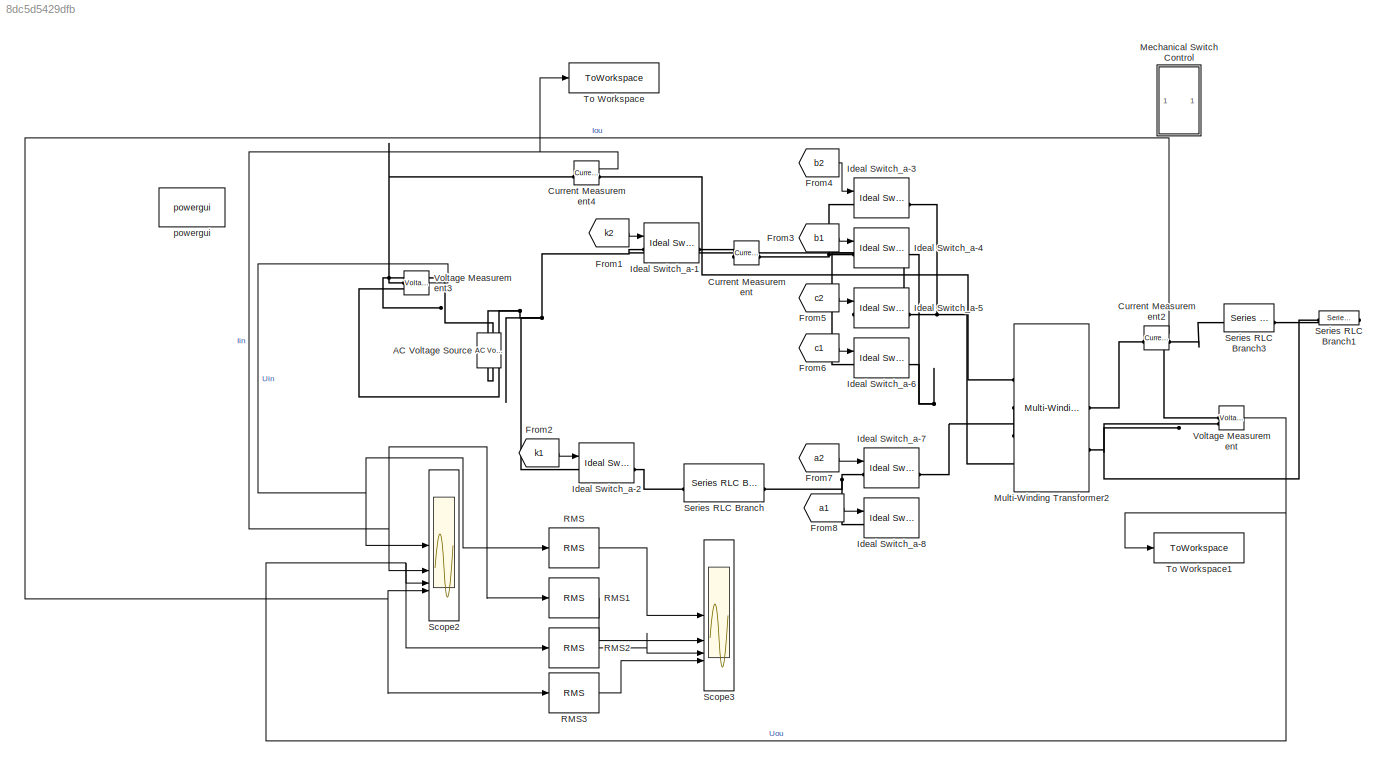
MODEL slx_8dc5d5429dfb
KIND model
CONFIG AbsTol = auto
CONFIG EnableMultiTasking = on
CONFIG FixedStep = auto
CONFIG MaxStep = auto
CONFIG MinStep = auto
CONFIG RelTol = 1e-3
CONFIG SampleTimeConstraint = Unconstrained
CONFIG SolverName = ode45
CONFIG StartTime = 0.0
CONFIG StopTime = 10
BLOCK [Reference] AC Voltage Source  REF=spsACVoltageSourceLib/AC Voltage Source
  LibrarySourceBlock = sps_lib/Sources/AC Voltage Source
  NameLocation = left
  SourceBlock = spsACVoltageSourceLib/AC Voltage Source
  SourceType = AC Voltage Source
BLOCK [Reference] Current Measurement  REF=spsCurrentMeasurementLib/Current Measurement
  LibrarySourceBlock = sps_lib/Sensors and Measurements/Current Measurement
  SourceBlock = spsCurrentMeasurementLib/Current Measurement
  SourceType = Current Measurement
  UserDataPersistent = on
BLOCK [Reference] Current Measurement2  REF=spsCurrentMeasurementLib/Current Measurement
  LibrarySourceBlock = sps_lib/Sensors and Measurements/Current Measurement
  SourceBlock = spsCurrentMeasurementLib/Current Measurement
  SourceType = Current Measurement
  UserDataPersistent = on
BLOCK [Reference] Current Measurement4  REF=spsCurrentMeasurementLib/Current Measurement
  LibrarySourceBlock = sps_lib/Sensors and Measurements/Current Measurement
  SourceBlock = spsCurrentMeasurementLib/Current Measurement
  SourceType = Current Measurement
  UserDataPersistent = on
BLOCK [From] From1
  GotoTag = k2
  TagVisibility = global
BLOCK [From] From2
  GotoTag = k1
  TagVisibility = global
BLOCK [From] From3
  GotoTag = b1
  TagVisibility = global
BLOCK [From] From4
  GotoTag = b2
  TagVisibility = global
BLOCK [From] From5
  GotoTag = c2
  TagVisibility = global
BLOCK [From] From6
  GotoTag = c1
  TagVisibility = global
BLOCK [From] From7
  GotoTag = a2
  TagVisibility = global
BLOCK [From] From8
  GotoTag = a1
  TagVisibility = global
BLOCK [Reference] Ideal Switch_a-1  REF=spsIdealSwitchLib/Ideal Switch
  LibrarySourceBlock = sps_lib/Power Electronics/Ideal Switch
  SourceBlock = spsIdealSwitchLib/Ideal Switch
  SourceType = Ideal Switch
BLOCK [Reference] Ideal Switch_a-2  REF=spsIdealSwitchLib/Ideal Switch
  LibrarySourceBlock = sps_lib/Power Electronics/Ideal Switch
  SourceBlock = spsIdealSwitchLib/Ideal Switch
  SourceType = Ideal Switch
BLOCK [Reference] Ideal Switch_a-3  REF=spsIdealSwitchLib/Ideal Switch
  LibrarySourceBlock = sps_lib/Power Electronics/Ideal Switch
  SourceBlock = spsIdealSwitchLib/Ideal Switch
  SourceType = Ideal Switch
BLOCK [Reference] Ideal Switch_a-4  REF=spsIdealSwitchLib/Ideal Switch
  LibrarySourceBlock = sps_lib/Power Electronics/Ideal Switch
  SourceBlock = spsIdealSwitchLib/Ideal Switch
  SourceType = Ideal Switch
BLOCK [Reference] Ideal Switch_a-5  REF=spsIdealSwitchLib/Ideal Switch
  LibrarySourceBlock = sps_lib/Power Electronics/Ideal Switch
  SourceBlock = spsIdealSwitchLib/Ideal Switch
  SourceType = Ideal Switch
BLOCK [Reference] Ideal Switch_a-6  REF=spsIdealSwitchLib/Ideal Switch
  LibrarySourceBlock = sps_lib/Power Electronics/Ideal Switch
  SourceBlock = spsIdealSwitchLib/Ideal Switch
  SourceType = Ideal Switch
BLOCK [Reference] Ideal Switch_a-7  REF=spsIdealSwitchLib/Ideal Switch
  LibrarySourceBlock = sps_lib/Power Electronics/Ideal Switch
  SourceBlock = spsIdealSwitchLib/Ideal Switch
  SourceType = Ideal Switch
BLOCK [Reference] Ideal Switch_a-8  REF=spsIdealSwitchLib/Ideal Switch
  LibrarySourceBlock = sps_lib/Power Electronics/Ideal Switch
  SourceBlock = spsIdealSwitchLib/Ideal Switch
  SourceType = Ideal Switch
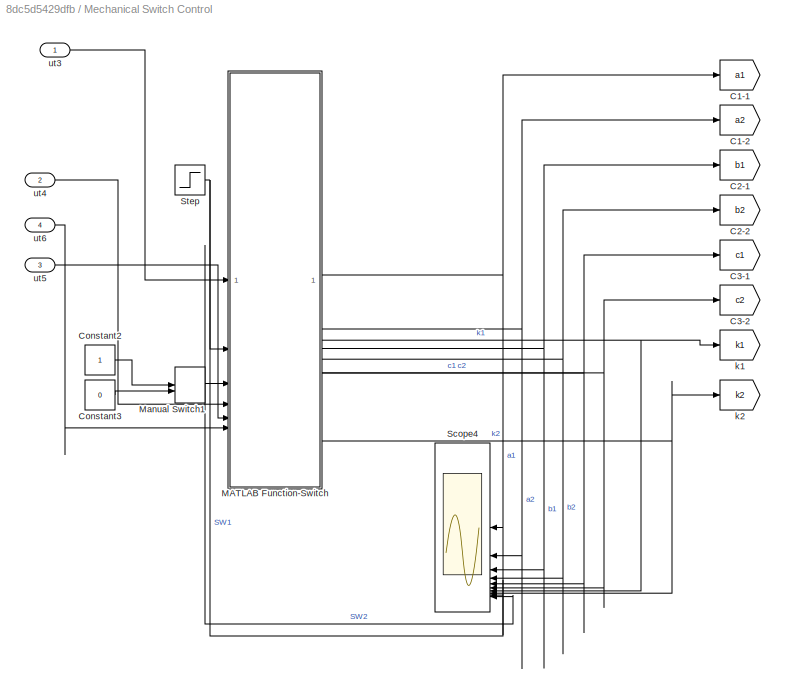
BLOCK [SubSystem] Mechanical Switch Control
BLOCK [Goto] Mechanical Switch Control/C1-1
  GotoTag = a1
  TagVisibility = global
BLOCK [Goto] Mechanical Switch Control/C1-2
  GotoTag = a2
  TagVisibility = global
BLOCK [Goto] Mechanical Switch Control/C2-1
  GotoTag = b1
  TagVisibility = global
BLOCK [Goto] Mechanical Switch Control/C2-2
  GotoTag = b2
  TagVisibility = global
BLOCK [Goto] Mechanical Switch Control/C3-1
  GotoTag = c1
  TagVisibility = global
BLOCK [Goto] Mechanical Switch Control/C3-2
  GotoTag = c2
  TagVisibility = global
BLOCK [Constant] Mechanical Switch Control/Constant2
BLOCK [Constant] Mechanical Switch Control/Constant3
  Value = 0
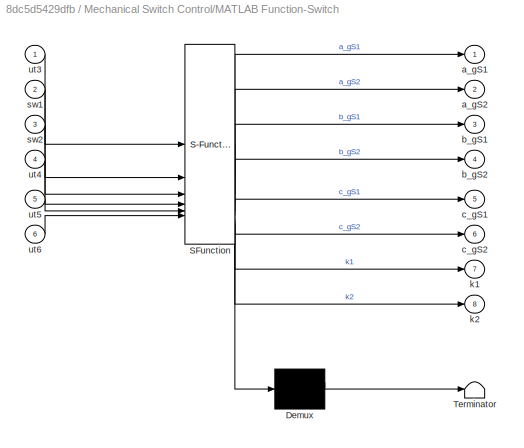
BLOCK [SubSystem] Mechanical Switch Control/MATLAB Function-Switch
  ErrorFcn = Stateflow.Translate.translate
  PermitHierarchicalResolution = ExplicitOnly
  SFBlockType = MATLAB Function
  TreatAsAtomicUnit = on
BLOCK [Demux] Mechanical Switch Control/MATLAB Function-Switch/ Demux 
  Outputs = 1
BLOCK [S-Function] Mechanical Switch Control/MATLAB Function-Switch/ SFunction 
  EnableBusSupport = on
  FunctionName = sf_sfun
  PortCounts = [6 9]
  SFcnIsStateOwnerBlock = off
  SFunctionDeploymentMode = off
  Tag = Stateflow S-Function 2
BLOCK [Terminator] Mechanical Switch Control/MATLAB Function-Switch/ Terminator 
BLOCK [Outport] Mechanical Switch Control/MATLAB Function-Switch/a_gS1
BLOCK [Outport] Mechanical Switch Control/MATLAB Function-Switch/a_gS2
  Port = 2
BLOCK [Outport] Mechanical Switch Control/MATLAB Function-Switch/b_gS1
  Port = 3
BLOCK [Outport] Mechanical Switch Control/MATLAB Function-Switch/b_gS2
  Port = 4
BLOCK [Outport] Mechanical Switch Control/MATLAB Function-Switch/c_gS1
  Port = 5
BLOCK [Outport] Mechanical Switch Control/MATLAB Function-Switch/c_gS2
  Port = 6
BLOCK [Outport] Mechanical Switch Control/MATLAB Function-Switch/k1
  Port = 7
BLOCK [Outport] Mechanical Switch Control/MATLAB Function-Switch/k2
  Port = 8
BLOCK [Inport] Mechanical Switch Control/MATLAB Function-Switch/sw1
  Port = 2
BLOCK [Inport] Mechanical Switch Control/MATLAB Function-Switch/sw2
  Port = 3
BLOCK [Inport] Mechanical Switch Control/MATLAB Function-Switch/ut3
BLOCK [Inport] Mechanical Switch Control/MATLAB Function-Switch/ut4
  Port = 4
BLOCK [Inport] Mechanical Switch Control/MATLAB Function-Switch/ut5
  Port = 5
BLOCK [Inport] Mechanical Switch Control/MATLAB Function-Switch/ut6
  Port = 6
BLOCK [ManualSwitch] Mechanical Switch Control/Manual Switch1
BLOCK [Scope] Mechanical Switch Control/Scope4
  Floating = off
  NameLocation = top
  NumInputPorts = 10
  ScopeSpecificationString = Simulink.scopes.TimeScopeBlockCfg('CurrentConfiguration', extmgr.ConfigurationSet(extmgr.Configuration('Core','General UI',true,'FigureColor',[0 0 0]),extmgr.Configuration('Core','Source UI',true),extmgr.Configuration('Sources','WiredSimulink',true,'DataLoggingSaveFormat','Structure','DataLoggingDecimation','1','DataLoggingDecimateData',true),extmgr.Configuration('Visuals','Time Domain',true,'Seri...<+13883ch>
BLOCK [Step] Mechanical Switch Control/Step
  SampleTime = 0
  Time = 5
BLOCK [Goto] Mechanical Switch Control/k1
  GotoTag = k1
  TagVisibility = global
BLOCK [Goto] Mechanical Switch Control/k2
  GotoTag = k2
  TagVisibility = global
BLOCK [Inport] Mechanical Switch Control/ut3
BLOCK [Inport] Mechanical Switch Control/ut4
  Port = 2
BLOCK [Inport] Mechanical Switch Control/ut5
  Port = 3
BLOCK [Inport] Mechanical Switch Control/ut6
  Port = 4
BLOCK [Reference] Multi-Winding Transformer2  REF=spsMultiWindingTransformerLib/Multi-Winding
Transformer
  LibrarySourceBlock = sps_lib/Power Grid Elements/Multi-Winding\nTransformer
  SourceBlock = spsMultiWindingTransformerLib/Multi-Winding\nTransformer
  SourceType = Multi-Winding Transformer
BLOCK [Reference] RMS  REF=spsRMSLib/RMS
  LibrarySourceBlock = sps_lib/Sensors and Measurements/RMS
  SourceBlock = spsRMSLib/RMS
  SourceType = RMS
BLOCK [Reference] RMS1  REF=spsRMSLib/RMS
  LibrarySourceBlock = sps_lib/Sensors and Measurements/RMS
  SourceBlock = spsRMSLib/RMS
  SourceType = RMS
BLOCK [Reference] RMS2  REF=spsRMSLib/RMS
  LibrarySourceBlock = sps_lib/Sensors and Measurements/RMS
  SourceBlock = spsRMSLib/RMS
  SourceType = RMS
BLOCK [Reference] RMS3  REF=spsRMSLib/RMS
  LibrarySourceBlock = sps_lib/Sensors and Measurements/RMS
  SourceBlock = spsRMSLib/RMS
  SourceType = RMS
BLOCK [Scope] Scope2
  Floating = off
  NumInputPorts = 4
  ScopeSpecificationString = Simulink.scopes.TimeScopeBlockCfg('CurrentConfiguration', extmgr.ConfigurationSet(extmgr.Configuration('Core','General UI',true,'FigureColor',[0.156862745098039 0.156862745098039 0.156862745098039]),extmgr.Configuration('Core','Source UI',true),extmgr.Configuration('Sources','WiredSimulink',true,'DataLogging',true,'DataLoggingVariableName','shuju1','DataLoggingSaveFormat','StructureWithTime','Data...<+7376ch>
BLOCK [Scope] Scope3
  Floating = off
  NumInputPorts = 4
  ScopeSpecificationString = Simulink.scopes.TimeScopeBlockCfg('CurrentConfiguration', extmgr.ConfigurationSet(extmgr.Configuration('Core','General UI',true,'FigureColor',[0.156862745098039 0.156862745098039 0.156862745098039]),extmgr.Configuration('Core','Source UI',true),extmgr.Configuration('Sources','WiredSimulink',true,'DataLogging',true,'DataLoggingVariableName','ScopeData1','DataLoggingSaveFormat','StructureWithTime','...<+7176ch>
BLOCK [Reference] Series RLC Branch  REF=spsSeriesRLCBranchLib/Series RLC Branch
  LibrarySourceBlock = sps_lib/Passives/Series RLC Branch
  SourceBlock = spsSeriesRLCBranchLib/Series RLC Branch
  SourceType = Series RLC Branch
BLOCK [Reference] Series RLC Branch1  REF=spsSeriesRLCBranchLib/Series RLC Branch
  LibrarySourceBlock = sps_lib/Passives/Series RLC Branch
  SourceBlock = spsSeriesRLCBranchLib/Series RLC Branch
  SourceType = Series RLC Branch
BLOCK [Reference] Series RLC Branch3  REF=spsSeriesRLCBranchLib/Series RLC Branch
  LibrarySourceBlock = sps_lib/Passives/Series RLC Branch
  SourceBlock = spsSeriesRLCBranchLib/Series RLC Branch
  SourceType = Series RLC Branch
BLOCK [ToWorkspace] To Workspace
  FixptAsFi = on
  MaxDataPoints = inf
  SampleTime = -1
  SaveFormat = Timeseries
  VariableName = Iin
BLOCK [ToWorkspace] To Workspace1
  FixptAsFi = on
  MaxDataPoints = inf
  SampleTime = -1
  SaveFormat = Timeseries
  VariableName = Uout
BLOCK [Reference] Voltage Measurement  REF=spsVoltageMeasurementLib/Voltage Measurement
  LibrarySourceBlock = sps_lib/Sensors and Measurements/Voltage Measurement
  SourceBlock = spsVoltageMeasurementLib/Voltage Measurement
  SourceType = Voltage Measurement
  UserDataPersistent = on
BLOCK [Reference] Voltage Measurement3  REF=spsVoltageMeasurementLib/Voltage Measurement
  LibrarySourceBlock = sps_lib/Sensors and Measurements/Voltage Measurement
  SourceBlock = spsVoltageMeasurementLib/Voltage Measurement
  SourceType = Voltage Measurement
  UserDataPersistent = on
BLOCK [Reference] powergui  REF=spspowerguiLib/powergui
  LibrarySourceBlock = sps_lib/powergui
  Priority = 1
  SourceBlock = spspowerguiLib/powergui
  SourceType = PSB option menu block
NET Current Measurement2:1 -> RMS3:1, Scope2:4
NET Current Measurement4:1 -> RMS1:1, Scope2:2, To Workspace:1
LINE From1:1 -> Ideal Switch_a-1:1
LINE From2:1 -> Ideal Switch_a-2:1
LINE From3:1 -> Ideal Switch_a-4:1
LINE From4:1 -> Ideal Switch_a-3:1
LINE From5:1 -> Ideal Switch_a-5:1
LINE From6:1 -> Ideal Switch_a-6:1
LINE From7:1 -> Ideal Switch_a-7:1
LINE From8:1 -> Ideal Switch_a-8:1
LINE Mechanical Switch Control/Constant2:1 -> Mechanical Switch Control/Manual Switch1:1
LINE Mechanical Switch Control/Constant3:1 -> Mechanical Switch Control/Manual Switch1:2
NET Mechanical Switch Control/MATLAB Function-Switch:1 -> Mechanical Switch Control/C1-1:1, Mechanical Switch Control/Scope4:1
NET Mechanical Switch Control/MATLAB Function-Switch:2 -> Mechanical Switch Control/C1-2:1, Mechanical Switch Control/Scope4:2
NET Mechanical Switch Control/MATLAB Function-Switch:3 -> Mechanical Switch Control/C2-1:1, Mechanical Switch Control/Scope4:3
NET Mechanical Switch Control/MATLAB Function-Switch:4 -> Mechanical Switch Control/C2-2:1, Mechanical Switch Control/Scope4:4
NET Mechanical Switch Control/MATLAB Function-Switch:5 -> Mechanical Switch Control/C3-1:1, Mechanical Switch Control/Scope4:5
NET Mechanical Switch Control/MATLAB Function-Switch:6 -> Mechanical Switch Control/C3-2:1, Mechanical Switch Control/Scope4:6
NET Mechanical Switch Control/MATLAB Function-Switch:7 -> Mechanical Switch Control/Scope4:7, Mechanical Switch Control/k1:1
NET Mechanical Switch Control/MATLAB Function-Switch:8 -> Mechanical Switch Control/Scope4:8, Mechanical Switch Control/k2:1
NET Mechanical Switch Control/Manual Switch1:1 -> Mechanical Switch Control/MATLAB Function-Switch:3, Mechanical Switch Control/Scope4:10
NET Mechanical Switch Control/Step:1 -> Mechanical Switch Control/MATLAB Function-Switch:2, Mechanical Switch Control/Scope4:9
LINE Mechanical Switch Control/ut3:1 -> Mechanical Switch Control/MATLAB Function-Switch:1
LINE Mechanical Switch Control/ut4:1 -> Mechanical Switch Control/MATLAB Function-Switch:4
LINE Mechanical Switch Control/ut5:1 -> Mechanical Switch Control/MATLAB Function-Switch:5
LINE Mechanical Switch Control/ut6:1 -> Mechanical Switch Control/MATLAB Function-Switch:6
LINE RMS1:1 -> Scope3:2
LINE RMS2:1 -> Scope3:3
LINE RMS3:1 -> Scope3:4
LINE RMS:1 -> Scope3:1
NET Voltage Measurement3:1 -> RMS:1, Scope2:1
NET Voltage Measurement:1 -> RMS2:1, Scope2:3, To Workspace1:1
PNET net1: AC Voltage Source:LConn1 -- Ideal Switch_a-1:LConn1 -- Ideal Switch_a-2:LConn1 -- Ideal Switch_a-5:LConn1 -- Ideal Switch_a-6:LConn1 -- Voltage Measurement3:LConn2
PNET net2: AC Voltage Source:RConn1 -- Current Measurement4:LConn1 -- Voltage Measurement3:LConn1
PLINE Current Measurement2:LConn1 -- Multi-Winding Transformer2:RConn1
PNET net3: Current Measurement2:RConn1 -- Series RLC Branch3:LConn1 -- Voltage Measurement:LConn1
PLINE Current Measurement4:RConn1 -- Multi-Winding Transformer2:LConn1
PLINE Current Measurement:LConn1 -- Ideal Switch_a-1:RConn1
PNET net4: Current Measurement:RConn1 -- Ideal Switch_a-3:LConn1 -- Ideal Switch_a-4:LConn1
PLINE Ideal Switch_a-2:RConn1 -- Series RLC Branch:LConn1
PNET net5: Ideal Switch_a-3:RConn1 -- Ideal Switch_a-5:RConn1 -- Multi-Winding Transformer2:LConn4
PNET net6: Ideal Switch_a-4:RConn1 -- Ideal Switch_a-6:RConn1 -- Ideal Switch_a-7:RConn1 -- Multi-Winding Transformer2:LConn2 -- Multi-Winding Transformer2:LConn3
PNET net7: Ideal Switch_a-7:LConn1 -- Ideal Switch_a-8:LConn1 -- Series RLC Branch:RConn1
PNET net8: Multi-Winding Transformer2:RConn2 -- Series RLC Branch1:RConn1 -- Voltage Measurement:LConn2
PLINE Series RLC Branch1:LConn1 -- Series RLC Branch3:RConn1
note: NET lines group one-source signal fan-out (src -> all destinations, sorted); 1:1 wires keep LINE; PNET lines group multi-terminal physical nets as a canonical sorted terminal list (undirected conserving connections); 2-terminal nets keep the pairwise PLINE form
CHART Mechanical Switch Control/MATLAB Function-Switch states=1 transitions=1
  STATE_LABEL 'eML_blk_kernel()'
  STATE_LABEL 'SCRIPT:\nfunction [a_gS1, a_gS2, b_gS1, b_gS2, c_gS1, c_gS2, k1, k2] = fcn(ut3, sw1, sw2, ut4, ut5, ut6)\n%#codegen\n% OLTC Control Logic Function - OLTC控制逻辑函数\n% This function implements the control logic for an On-Load Tap Changer (OLTC)\n% 此函数实现了有载分接开关(OLTC)的控制逻辑\n\n% Declare persistent variables to maintain state between function calls\n% 声明持久变量以在函数调用之间维持状态\npersistent phase sw2pre num t1 ut1 ut2 ut7 a...<+3608ch>'
CHART  states=0 transitions=0
